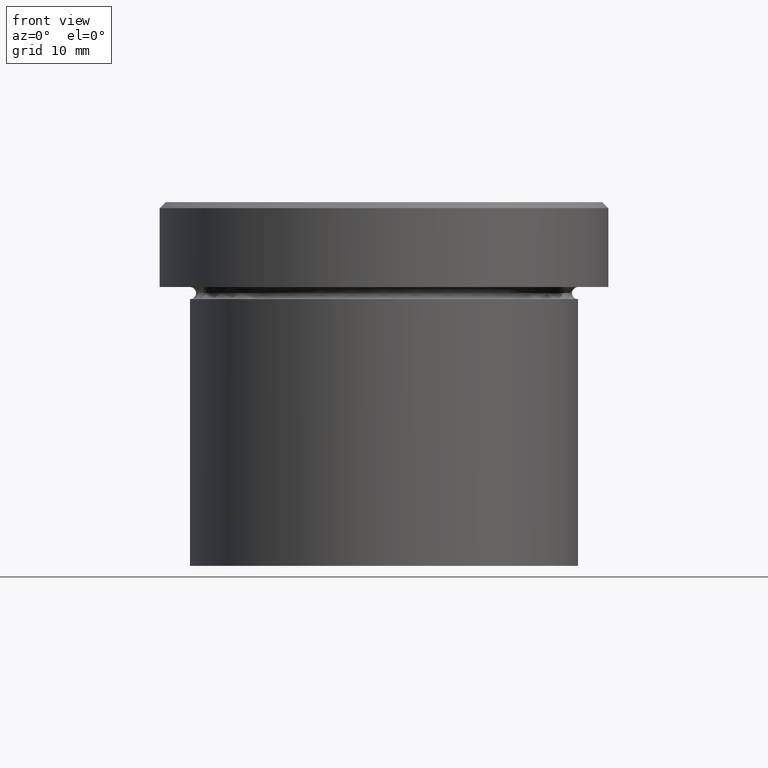
[diagram: clean part render]
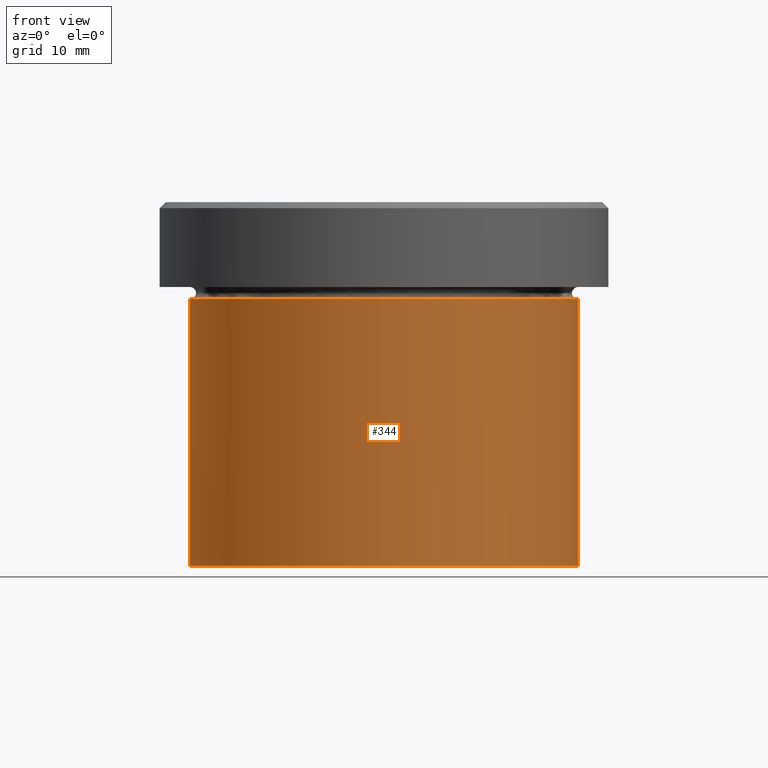
[diagram: same view with one face highlighted and labeled with its STEP entity id]
A machine part, front view. The second image highlights one B-rep face of the part: STEP entity #344.
In plain terms, the highlighted cylindrical surface (partial cylindrical patch) has radius 16 mm, axis along (-0, -0, 1).
Its self-contained STEP definition (entity closure, byte-faithful):
#23 = ORIENTED_EDGE ( 'NONE', *, *, #145, .T. ) ;
#26 = EDGE_CURVE ( 'NONE', #192, #341, #82, .T. ) ;
#56 = VECTOR ( 'NONE', #154, 1000.000000000000000 ) ;
#70 = LINE ( 'NONE', #72, #319 ) ;
#72 = CARTESIAN_POINT ( 'NONE',  ( 16.00000000000000000, 0.000000000000000000, 0.000000000000000000 ) ) ;
#73 = DIRECTION ( 'NONE',  ( 1.000000000000000000, 0.000000000000000000, 0.000000000000000000 ) ) ;
#82 = LINE ( 'NONE', #369, #56 ) ;
#84 = EDGE_CURVE ( 'NONE', #341, #292, #315, .T. ) ;
#90 = AXIS2_PLACEMENT_3D ( 'NONE', #108, #362, #110 ) ;
#92 = EDGE_CURVE ( 'NONE', #192, #266, #379, .T. ) ;
#106 = AXIS2_PLACEMENT_3D ( 'NONE', #207, #282, #73 ) ;
#108 = CARTESIAN_POINT ( 'NONE',  ( 0.000000000000000000, 0.000000000000000000, 0.000000000000000000 ) ) ;
#110 = DIRECTION ( 'NONE',  ( 1.000000000000000000, 0.000000000000000000, 0.000000000000000000 ) ) ;
#111 = DIRECTION ( 'NONE',  ( -0.000000000000000000, -0.000000000000000000, 1.000000000000000000 ) ) ;
#145 = EDGE_CURVE ( 'NONE', #266, #292, #70, .T. ) ;
#149 = DIRECTION ( 'NONE',  ( -0.000000000000000000, -0.000000000000000000, 1.000000000000000000 ) ) ;
#154 = DIRECTION ( 'NONE',  ( -0.000000000000000000, -0.000000000000000000, 1.000000000000000000 ) ) ;
#187 = ORIENTED_EDGE ( 'NONE', *, *, #92, .T. ) ;
#190 = EDGE_LOOP ( 'NONE', ( #381, #187, #23, #317 ) ) ;
#192 = VERTEX_POINT ( 'NONE', #305 ) ;
#207 = CARTESIAN_POINT ( 'NONE',  ( 0.000000000000000000, 0.000000000000000000, -8.000000000000000000 ) ) ;
#218 = AXIS2_PLACEMENT_3D ( 'NONE', #251, #149, #368 ) ;
#251 = CARTESIAN_POINT ( 'NONE',  ( 0.000000000000000000, 0.000000000000000000, -30.00000000000000000 ) ) ;
#266 = VERTEX_POINT ( 'NONE', #275 ) ;
#275 = CARTESIAN_POINT ( 'NONE',  ( 16.00000000000000000, 0.000000000000000000, -30.00000000000000000 ) ) ;
#281 = CYLINDRICAL_SURFACE ( 'NONE', #90, 16.00000000000000000 ) ;
#282 = DIRECTION ( 'NONE',  ( -0.000000000000000000, -0.000000000000000000, 1.000000000000000000 ) ) ;
#292 = VERTEX_POINT ( 'NONE', #358 ) ;
#305 = CARTESIAN_POINT ( 'NONE',  ( -16.00000000000000000, 1.959434878635765131E-15, -30.00000000000000000 ) ) ;
#315 = CIRCLE ( 'NONE', #106, 16.00000000000000000 ) ;
#317 = ORIENTED_EDGE ( 'NONE', *, *, #84, .F. ) ;
#319 = VECTOR ( 'NONE', #111, 1000.000000000000000 ) ;
#341 = VERTEX_POINT ( 'NONE', #389 ) ;
#344 = ADVANCED_FACE ( 'NONE', ( #396 ), #281, .T. ) ;
#358 = CARTESIAN_POINT ( 'NONE',  ( 16.00000000000000000, 0.000000000000000000, -8.000000000000000000 ) ) ;
#362 = DIRECTION ( 'NONE',  ( -0.000000000000000000, -0.000000000000000000, 1.000000000000000000 ) ) ;
#368 = DIRECTION ( 'NONE',  ( 1.000000000000000000, 0.000000000000000000, 0.000000000000000000 ) ) ;
#369 = CARTESIAN_POINT ( 'NONE',  ( -16.00000000000000000, 1.959434878635765131E-15, 0.000000000000000000 ) ) ;
#379 = CIRCLE ( 'NONE', #218, 16.00000000000000000 ) ;
#381 = ORIENTED_EDGE ( 'NONE', *, *, #26, .F. ) ;
#389 = CARTESIAN_POINT ( 'NONE',  ( -16.00000000000000000, 1.959434878635765131E-15, -8.000000000000000000 ) ) ;
#396 = FACE_OUTER_BOUND ( 'NONE', #190, .T. ) ;